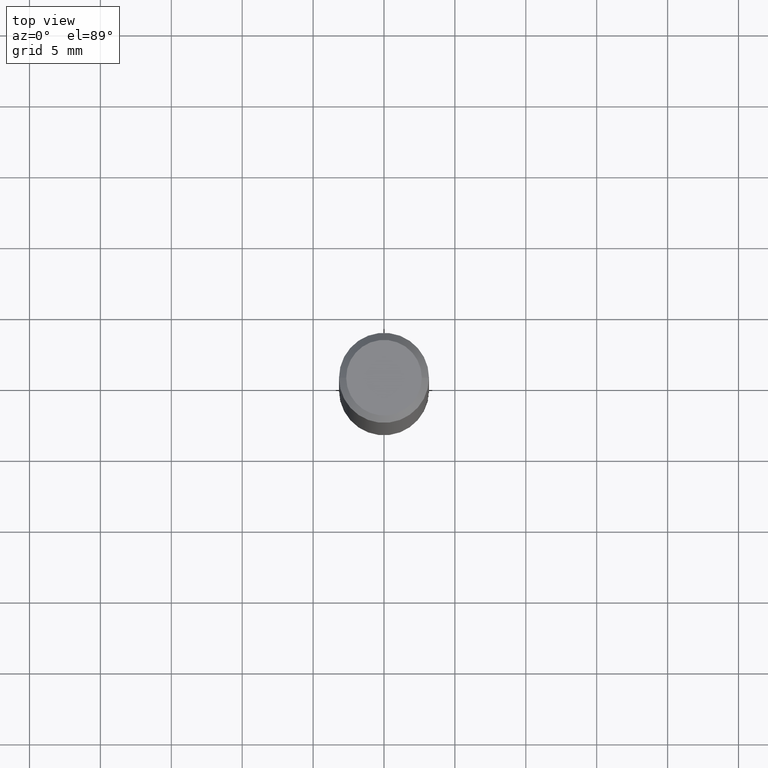
[diagram: clean part render]
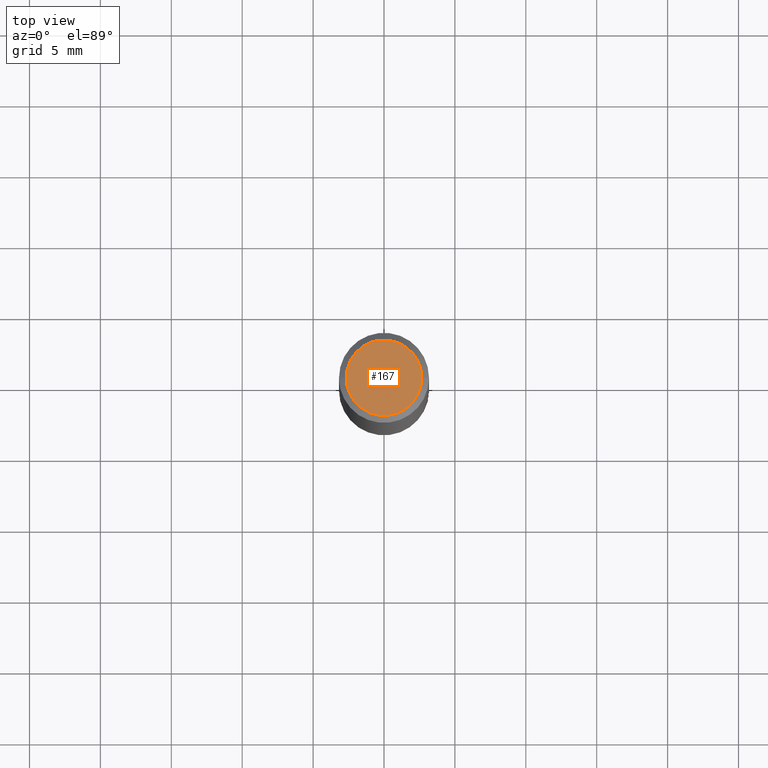
[diagram: same view with one face highlighted and labeled with its STEP entity id]
A machine part, top view. The second image highlights one B-rep face of the part: STEP entity #167.
In plain terms, the highlighted planar face has unit normal (0, -0, -1).
Its self-contained STEP definition (entity closure, byte-faithful):
#21 = VERTEX_POINT ( 'NONE', #292 ) ;
#32 = EDGE_CURVE ( 'NONE', #248, #21, #263, .T. ) ;
#47 = CARTESIAN_POINT ( 'NONE',  ( 7.332110811570568410E-16, 0.1049999999999998296, -3.666055405785297517E-16 ) ) ;
#52 = DIRECTION ( 'NONE',  ( -1.000000000000000000, 6.982962677686265922E-15, -4.876176775795935793E-29 ) ) ;
#60 = AXIS2_PLACEMENT_3D ( 'NONE', #47, #228, #52 ) ;
#70 = CIRCLE ( 'NONE', #97, 0.1049999999999998296 ) ;
#84 = FACE_OUTER_BOUND ( 'NONE', #130, .T. ) ;
#97 = AXIS2_PLACEMENT_3D ( 'NONE', #282, #137, #258 ) ;
#130 = EDGE_LOOP ( 'NONE', ( #355, #182 ) ) ;
#137 = DIRECTION ( 'NONE',  ( -2.445468806185136597E-29, 3.491481338843145583E-15, 1.000000000000000000 ) ) ;
#167 = ADVANCED_FACE ( 'NONE', ( #84 ), #233, .F. ) ;
#182 = ORIENTED_EDGE ( 'NONE', *, *, #253, .T. ) ;
#228 = DIRECTION ( 'NONE',  ( 2.438088387897960049E-29, -3.491481338843145188E-15, -1.000000000000000000 ) ) ;
#230 = DIRECTION ( 'NONE',  ( -2.445468806185136597E-29, 3.491481338843145583E-15, 1.000000000000000000 ) ) ;
#233 = PLANE ( 'NONE',  #60 ) ;
#234 = AXIS2_PLACEMENT_3D ( 'NONE', #359, #230, #259 ) ;
#248 = VERTEX_POINT ( 'NONE', #338 ) ;
#253 = EDGE_CURVE ( 'NONE', #21, #248, #70, .T. ) ;
#258 = DIRECTION ( 'NONE',  ( 1.000000000000000000, -6.982962677686266711E-15, 4.876176775795935793E-29 ) ) ;
#259 = DIRECTION ( 'NONE',  ( 1.000000000000000000, -6.982962677686266711E-15, 4.876176775795935793E-29 ) ) ;
#263 = CIRCLE ( 'NONE', #234, 0.1049999999999998296 ) ;
#282 = CARTESIAN_POINT ( 'NONE',  ( 0.000000000000000000, 0.000000000000000000, 0.000000000000000000 ) ) ;
#292 = CARTESIAN_POINT ( 'NONE',  ( 0.1049999999999998296, -8.238720831321564811E-16, 5.444276250344142358E-30 ) ) ;
#338 = CARTESIAN_POINT ( 'NONE',  ( -0.1049999999999998296, 7.681258945454878985E-16, -5.249639473182158169E-30 ) ) ;
#355 = ORIENTED_EDGE ( 'NONE', *, *, #32, .T. ) ;
#359 = CARTESIAN_POINT ( 'NONE',  ( 0.000000000000000000, 0.000000000000000000, 0.000000000000000000 ) ) ;